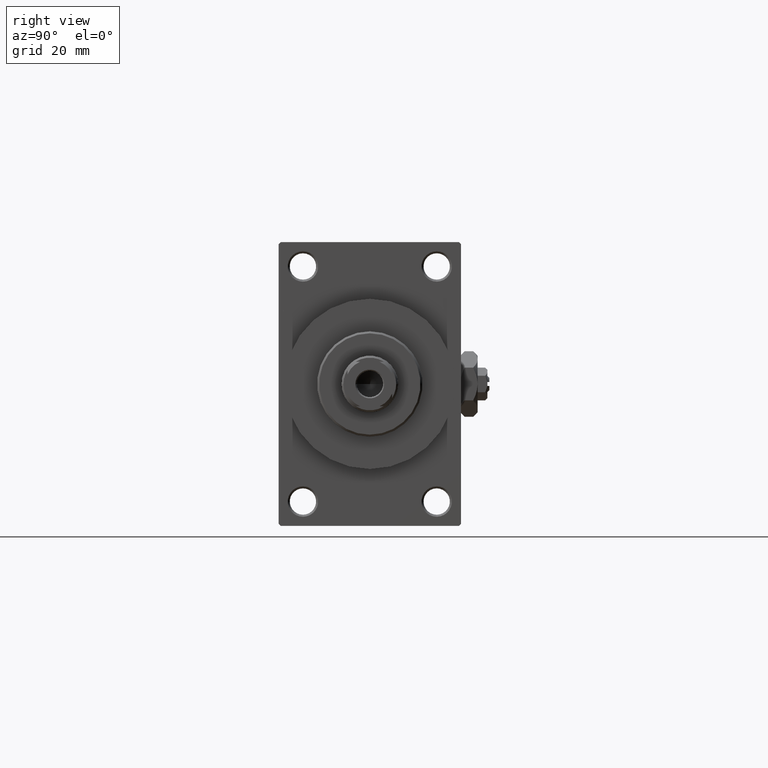
[diagram: clean part render]
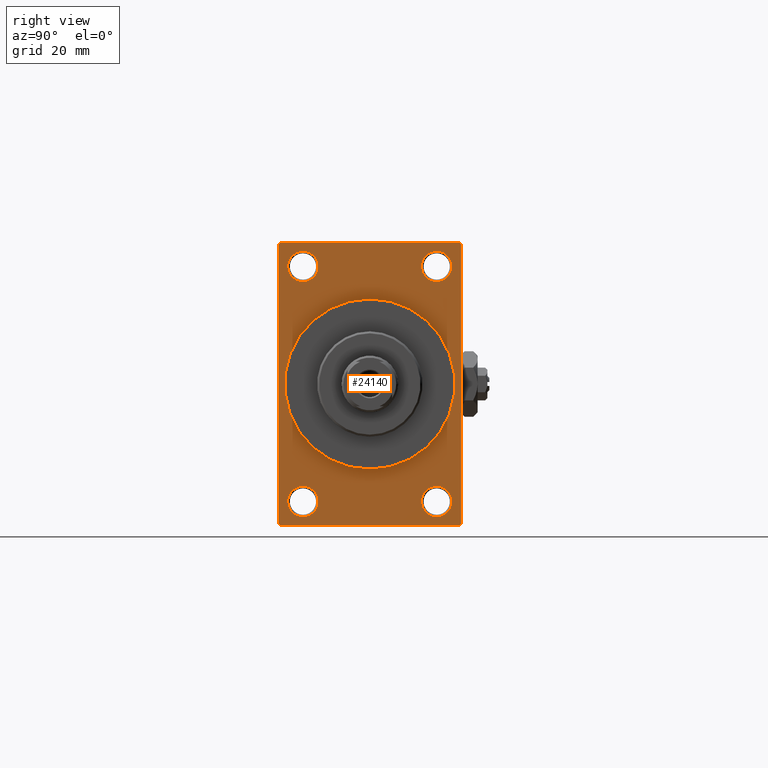
[diagram: same view with one face highlighted and labeled with its STEP entity id]
A machine part, right view. The second image highlights one B-rep face of the part: STEP entity #24140.
In plain terms, the highlighted planar face has unit normal (-1, 0, 0).
Its self-contained STEP definition (entity closure, byte-faithful):
#97 = CARTESIAN_POINT ( 'NONE',  ( 113.0000000000000142, -16.50000000000000000, 25.24999999999993960 ) ) ;
#307 = VERTEX_POINT ( 'NONE', #27035 ) ;
#590 = CIRCLE ( 'NONE', #39458, 3.750000000000069278 ) ;
#631 = DIRECTION ( 'NONE',  ( -1.000000000000000000, -0.000000000000000000, -0.000000000000000000 ) ) ;
#716 = ORIENTED_EDGE ( 'NONE', *, *, #46968, .T. ) ;
#776 = EDGE_LOOP ( 'NONE', ( #27406, #29274, #23062, #46913, #29911, #5922, #43927, #716 ) ) ;
#911 = VERTEX_POINT ( 'NONE', #39264 ) ;
#1194 = DIRECTION ( 'NONE',  ( 0.000000000000000000, 0.000000000000000000, 1.000000000000000000 ) ) ;
#1695 = CARTESIAN_POINT ( 'NONE',  ( 113.0000000000000142, -22.50000000000000355, 34.50000000000000000 ) ) ;
#1828 = CARTESIAN_POINT ( 'NONE',  ( 113.0000000000000142, 2.571758278209441661E-15, -21.00000000000000000 ) ) ;
#2065 = CARTESIAN_POINT ( 'NONE',  ( 113.0000000000000142, -16.50000000000000000, -28.99999999999999289 ) ) ;
#2131 = DIRECTION ( 'NONE',  ( 0.000000000000000000, 0.000000000000000000, 1.000000000000000000 ) ) ;
#2272 = LINE ( 'NONE', #32565, #41462 ) ;
#2622 = CARTESIAN_POINT ( 'NONE',  ( 113.0000000000000142, 16.50000000000000000, -28.99999999999999289 ) ) ;
#2880 = DIRECTION ( 'NONE',  ( 0.000000000000000000, -1.000000000000000000, 0.000000000000000000 ) ) ;
#2915 = ORIENTED_EDGE ( 'NONE', *, *, #29345, .T. ) ;
#3098 = VERTEX_POINT ( 'NONE', #14210 ) ;
#3306 = EDGE_CURVE ( 'NONE', #28517, #911, #39403, .T. ) ;
#3707 = DIRECTION ( 'NONE',  ( 1.000000000000000000, 0.000000000000000000, 0.000000000000000000 ) ) ;
#4218 = VERTEX_POINT ( 'NONE', #1828 ) ;
#5546 = CARTESIAN_POINT ( 'NONE',  ( 113.0000000000000142, -16.50000000000000000, -25.24999999999992184 ) ) ;
#5922 = ORIENTED_EDGE ( 'NONE', *, *, #41933, .T. ) ;
#6251 = DIRECTION ( 'NONE',  ( 0.000000000000000000, 0.000000000000000000, 1.000000000000000000 ) ) ;
#6436 = EDGE_CURVE ( 'NONE', #26003, #10861, #17294, .T. ) ;
#6534 = CARTESIAN_POINT ( 'NONE',  ( 113.0000000000000142, 22.49999999999999645, -34.50000000000000000 ) ) ;
#6734 = FACE_BOUND ( 'NONE', #11670, .T. ) ;
#6772 = EDGE_CURVE ( 'NONE', #23792, #21674, #43982, .T. ) ;
#7590 = VERTEX_POINT ( 'NONE', #47531 ) ;
#8163 = EDGE_CURVE ( 'NONE', #14517, #38658, #40641, .T. ) ;
#8383 = CARTESIAN_POINT ( 'NONE',  ( 113.0000000000000142, -16.50000000000000000, -32.75000000000007105 ) ) ;
#8601 = VECTOR ( 'NONE', #47955, 1000.000000000000000 ) ;
#9056 = CIRCLE ( 'NONE', #41624, 3.750000000000072831 ) ;
#9419 = VECTOR ( 'NONE', #2880, 1000.000000000000000 ) ;
#9845 = LINE ( 'NONE', #28965, #46258 ) ;
#9963 = CARTESIAN_POINT ( 'NONE',  ( 113.0000000000000142, -16.50000000000000000, -28.99999999999999289 ) ) ;
#10151 = AXIS2_PLACEMENT_3D ( 'NONE', #2622, #28434, #2131 ) ;
#10200 = FACE_BOUND ( 'NONE', #18673, .T. ) ;
#10861 = VERTEX_POINT ( 'NONE', #36254 ) ;
#11670 = EDGE_LOOP ( 'NONE', ( #47892, #21523 ) ) ;
#11907 = AXIS2_PLACEMENT_3D ( 'NONE', #37485, #3707, #26028 ) ;
#11913 = EDGE_CURVE ( 'NONE', #4218, #3098, #33315, .T. ) ;
#12610 = DIRECTION ( 'NONE',  ( -1.000000000000000000, -0.000000000000000000, -0.000000000000000000 ) ) ;
#12741 = CARTESIAN_POINT ( 'NONE',  ( 113.0000000000000142, 21.99999999999999645, -35.00000000000000000 ) ) ;
#12767 = AXIS2_PLACEMENT_3D ( 'NONE', #9963, #25120, #6251 ) ;
#14210 = CARTESIAN_POINT ( 'NONE',  ( 113.0000000000000142, 0.000000000000000000, 21.00000000000000000 ) ) ;
#14517 = VERTEX_POINT ( 'NONE', #12741 ) ;
#14806 = AXIS2_PLACEMENT_3D ( 'NONE', #38912, #24229, #23496 ) ;
#14868 = ORIENTED_EDGE ( 'NONE', *, *, #6436, .T. ) ;
#14927 = DIRECTION ( 'NONE',  ( 0.000000000000000000, 0.000000000000000000, -1.000000000000000000 ) ) ;
#16348 = ORIENTED_EDGE ( 'NONE', *, *, #44607, .F. ) ;
#16832 = CARTESIAN_POINT ( 'NONE',  ( 113.0000000000000142, -16.50000000000000000, 29.00000000000000711 ) ) ;
#17252 = CIRCLE ( 'NONE', #42636, 3.750000000000076383 ) ;
#17294 = CIRCLE ( 'NONE', #10151, 3.750000000000076383 ) ;
#17671 = FACE_BOUND ( 'NONE', #24594, .T. ) ;
#17826 = ORIENTED_EDGE ( 'NONE', *, *, #35030, .T. ) ;
#18363 = CARTESIAN_POINT ( 'NONE',  ( 113.0000000000000142, -22.50000000000000355, -34.49999999999997158 ) ) ;
#18414 = DIRECTION ( 'NONE',  ( 1.000000000000000000, 0.000000000000000000, 0.000000000000000000 ) ) ;
#18492 = ORIENTED_EDGE ( 'NONE', *, *, #28042, .T. ) ;
#18648 = EDGE_CURVE ( 'NONE', #14517, #37337, #9845, .T. ) ;
#18673 = EDGE_LOOP ( 'NONE', ( #18492, #24537 ) ) ;
#19077 = DIRECTION ( 'NONE',  ( 0.000000000000000000, -0.7071067811865474617, 0.7071067811865474617 ) ) ;
#19746 = CARTESIAN_POINT ( 'NONE',  ( 113.0000000000000142, -16.50000000000000000, 29.00000000000000711 ) ) ;
#20536 = AXIS2_PLACEMENT_3D ( 'NONE', #2065, #27876, #24164 ) ;
#20861 = CARTESIAN_POINT ( 'NONE',  ( 113.0000000000000142, 16.50000000000000000, 29.00000000000000355 ) ) ;
#21316 = CIRCLE ( 'NONE', #20536, 3.750000000000076383 ) ;
#21370 = CARTESIAN_POINT ( 'NONE',  ( 113.0000000000000142, 22.49999999999999645, 35.00000000000000000 ) ) ;
#21500 = CARTESIAN_POINT ( 'NONE',  ( 113.0000000000000142, 22.49999999999999645, -35.00000000000000000 ) ) ;
#21523 = ORIENTED_EDGE ( 'NONE', *, *, #21737, .T. ) ;
#21674 = VERTEX_POINT ( 'NONE', #43223 ) ;
#21737 = EDGE_CURVE ( 'NONE', #911, #28517, #9056, .T. ) ;
#21876 = DIRECTION ( 'NONE',  ( -0.000000000000000000, 0.000000000000000000, 1.000000000000000000 ) ) ;
#23062 = ORIENTED_EDGE ( 'NONE', *, *, #8163, .F. ) ;
#23496 = DIRECTION ( 'NONE',  ( 0.000000000000000000, 0.000000000000000000, 1.000000000000000000 ) ) ;
#23792 = VERTEX_POINT ( 'NONE', #45597 ) ;
#24140 = ADVANCED_FACE ( 'NONE', ( #10200, #47490, #17671, #6734, #40292, #33059 ), #48226, .F. ) ;
#24161 = DIRECTION ( 'NONE',  ( 0.000000000000000000, 0.000000000000000000, -1.000000000000000000 ) ) ;
#24164 = DIRECTION ( 'NONE',  ( 0.000000000000000000, 0.000000000000000000, 1.000000000000000000 ) ) ;
#24229 = DIRECTION ( 'NONE',  ( -1.000000000000000000, -0.000000000000000000, -0.000000000000000000 ) ) ;
#24537 = ORIENTED_EDGE ( 'NONE', *, *, #46927, .T. ) ;
#24594 = EDGE_LOOP ( 'NONE', ( #14868, #2915 ) ) ;
#24722 = VERTEX_POINT ( 'NONE', #8383 ) ;
#25120 = DIRECTION ( 'NONE',  ( -1.000000000000000000, -0.000000000000000000, -0.000000000000000000 ) ) ;
#25844 = DIRECTION ( 'NONE',  ( -1.000000000000000000, 0.000000000000000000, -0.000000000000000000 ) ) ;
#26003 = VERTEX_POINT ( 'NONE', #28751 ) ;
#26028 = DIRECTION ( 'NONE',  ( 0.000000000000000000, 0.000000000000000000, -1.000000000000000000 ) ) ;
#27035 = CARTESIAN_POINT ( 'NONE',  ( 113.0000000000000142, 22.49999999999999645, 34.50000000000000000 ) ) ;
#27126 = LINE ( 'NONE', #34375, #31873 ) ;
#27365 = AXIS2_PLACEMENT_3D ( 'NONE', #44250, #25844, #21876 ) ;
#27406 = ORIENTED_EDGE ( 'NONE', *, *, #28889, .T. ) ;
#27876 = DIRECTION ( 'NONE',  ( -1.000000000000000000, -0.000000000000000000, -0.000000000000000000 ) ) ;
#28042 = EDGE_CURVE ( 'NONE', #43672, #43352, #590, .T. ) ;
#28141 = ORIENTED_EDGE ( 'NONE', *, *, #45842, .T. ) ;
#28434 = DIRECTION ( 'NONE',  ( -1.000000000000000000, -0.000000000000000000, -0.000000000000000000 ) ) ;
#28517 = VERTEX_POINT ( 'NONE', #36811 ) ;
#28751 = CARTESIAN_POINT ( 'NONE',  ( 113.0000000000000142, 16.50000000000000000, -32.75000000000007105 ) ) ;
#28889 = EDGE_CURVE ( 'NONE', #7590, #46704, #47021, .T. ) ;
#28965 = CARTESIAN_POINT ( 'NONE',  ( 113.0000000000000142, 22.49999999999999645, -34.50000000000000000 ) ) ;
#29087 = CARTESIAN_POINT ( 'NONE',  ( 113.0000000000000142, 0.000000000000000000, 0.000000000000000000 ) ) ;
#29274 = ORIENTED_EDGE ( 'NONE', *, *, #48147, .T. ) ;
#29275 = DIRECTION ( 'NONE',  ( 0.000000000000000000, 0.000000000000000000, 1.000000000000000000 ) ) ;
#29345 = EDGE_CURVE ( 'NONE', #10861, #26003, #17252, .T. ) ;
#29474 = CARTESIAN_POINT ( 'NONE',  ( 113.0000000000000142, 16.50000000000000000, -28.99999999999999289 ) ) ;
#29911 = ORIENTED_EDGE ( 'NONE', *, *, #48646, .F. ) ;
#30486 = LINE ( 'NONE', #34234, #38875 ) ;
#31772 = CIRCLE ( 'NONE', #38142, 21.00000000000000000 ) ;
#31861 = CARTESIAN_POINT ( 'NONE',  ( 113.0000000000000142, -22.50000000000000355, 35.00000000000000000 ) ) ;
#31873 = VECTOR ( 'NONE', #42298, 999.9999999999998863 ) ;
#32525 = DIRECTION ( 'NONE',  ( -1.000000000000000000, -0.000000000000000000, -0.000000000000000000 ) ) ;
#32565 = CARTESIAN_POINT ( 'NONE',  ( 113.0000000000000142, 22.49999999999999645, 35.00000000000000000 ) ) ;
#32644 = AXIS2_PLACEMENT_3D ( 'NONE', #16832, #12610, #1194 ) ;
#33059 = FACE_OUTER_BOUND ( 'NONE', #776, .T. ) ;
#33206 = DIRECTION ( 'NONE',  ( 0.000000000000000000, 0.000000000000000000, 1.000000000000000000 ) ) ;
#33315 = CIRCLE ( 'NONE', #11907, 21.00000000000000000 ) ;
#33957 = DIRECTION ( 'NONE',  ( -1.000000000000000000, -0.000000000000000000, -0.000000000000000000 ) ) ;
#34234 = CARTESIAN_POINT ( 'NONE',  ( 113.0000000000000142, 21.99999999999999645, 35.00000000000000000 ) ) ;
#34375 = CARTESIAN_POINT ( 'NONE',  ( 113.0000000000000142, -21.99999999999998934, -35.00000000000000000 ) ) ;
#35030 = EDGE_CURVE ( 'NONE', #24722, #35124, #21316, .T. ) ;
#35124 = VERTEX_POINT ( 'NONE', #5546 ) ;
#35473 = DIRECTION ( 'NONE',  ( -0.000000000000000000, -0.7071067811865474617, -0.7071067811865474617 ) ) ;
#35699 = CARTESIAN_POINT ( 'NONE',  ( 113.0000000000000142, -16.50000000000000000, 32.75000000000007816 ) ) ;
#36254 = CARTESIAN_POINT ( 'NONE',  ( 113.0000000000000142, 16.50000000000000000, -25.24999999999992184 ) ) ;
#36811 = CARTESIAN_POINT ( 'NONE',  ( 113.0000000000000142, 16.50000000000000000, 25.24999999999993250 ) ) ;
#37337 = VERTEX_POINT ( 'NONE', #6534 ) ;
#37485 = CARTESIAN_POINT ( 'NONE',  ( 113.0000000000000142, 0.000000000000000000, 0.000000000000000000 ) ) ;
#38142 = AXIS2_PLACEMENT_3D ( 'NONE', #29087, #18414, #14927 ) ;
#38658 = VERTEX_POINT ( 'NONE', #43822 ) ;
#38875 = VECTOR ( 'NONE', #19077, 1000.000000000000114 ) ;
#38912 = CARTESIAN_POINT ( 'NONE',  ( 113.0000000000000142, 16.50000000000000000, 29.00000000000000355 ) ) ;
#39016 = VECTOR ( 'NONE', #35473, 1000.000000000000114 ) ;
#39264 = CARTESIAN_POINT ( 'NONE',  ( 113.0000000000000142, 16.50000000000000000, 32.75000000000007816 ) ) ;
#39403 = CIRCLE ( 'NONE', #14806, 3.750000000000072831 ) ;
#39458 = AXIS2_PLACEMENT_3D ( 'NONE', #19746, #631, #41869 ) ;
#39781 = EDGE_LOOP ( 'NONE', ( #16348, #44421 ) ) ;
#40038 = DIRECTION ( 'NONE',  ( 0.000000000000000000, 0.000000000000000000, -1.000000000000000000 ) ) ;
#40292 = FACE_BOUND ( 'NONE', #39781, .T. ) ;
#40641 = LINE ( 'NONE', #21500, #9419 ) ;
#41462 = VECTOR ( 'NONE', #40038, 1000.000000000000000 ) ;
#41624 = AXIS2_PLACEMENT_3D ( 'NONE', #20861, #32525, #29275 ) ;
#41869 = DIRECTION ( 'NONE',  ( 0.000000000000000000, 0.000000000000000000, 1.000000000000000000 ) ) ;
#41933 = EDGE_CURVE ( 'NONE', #307, #23792, #30486, .T. ) ;
#42165 = CIRCLE ( 'NONE', #32644, 3.750000000000069278 ) ;
#42298 = DIRECTION ( 'NONE',  ( 0.000000000000000000, 0.7071067811865376918, -0.7071067811865574537 ) ) ;
#42636 = AXIS2_PLACEMENT_3D ( 'NONE', #29474, #33957, #33206 ) ;
#42919 = LINE ( 'NONE', #1695, #39016 ) ;
#43223 = CARTESIAN_POINT ( 'NONE',  ( 113.0000000000000142, -21.99999999999998934, 35.00000000000000000 ) ) ;
#43352 = VERTEX_POINT ( 'NONE', #35699 ) ;
#43669 = EDGE_LOOP ( 'NONE', ( #17826, #28141 ) ) ;
#43672 = VERTEX_POINT ( 'NONE', #97 ) ;
#43822 = CARTESIAN_POINT ( 'NONE',  ( 113.0000000000000142, -21.99999999999997513, -35.00000000000000000 ) ) ;
#43927 = ORIENTED_EDGE ( 'NONE', *, *, #6772, .T. ) ;
#43982 = LINE ( 'NONE', #21370, #8601 ) ;
#44133 = DIRECTION ( 'NONE',  ( -0.000000000000000000, 0.7071067811865474617, 0.7071067811865474617 ) ) ;
#44250 = CARTESIAN_POINT ( 'NONE',  ( 113.0000000000000142, 0.000000000000000000, 0.000000000000000000 ) ) ;
#44421 = ORIENTED_EDGE ( 'NONE', *, *, #11913, .F. ) ;
#44607 = EDGE_CURVE ( 'NONE', #3098, #4218, #31772, .T. ) ;
#45597 = CARTESIAN_POINT ( 'NONE',  ( 113.0000000000000142, 21.99999999999999645, 35.00000000000000000 ) ) ;
#45842 = EDGE_CURVE ( 'NONE', #35124, #24722, #46091, .T. ) ;
#46091 = CIRCLE ( 'NONE', #12767, 3.750000000000076383 ) ;
#46258 = VECTOR ( 'NONE', #44133, 1000.000000000000114 ) ;
#46610 = VECTOR ( 'NONE', #24161, 1000.000000000000000 ) ;
#46704 = VERTEX_POINT ( 'NONE', #18363 ) ;
#46913 = ORIENTED_EDGE ( 'NONE', *, *, #18648, .T. ) ;
#46927 = EDGE_CURVE ( 'NONE', #43352, #43672, #42165, .T. ) ;
#46968 = EDGE_CURVE ( 'NONE', #21674, #7590, #42919, .T. ) ;
#47021 = LINE ( 'NONE', #31861, #46610 ) ;
#47490 = FACE_BOUND ( 'NONE', #43669, .T. ) ;
#47531 = CARTESIAN_POINT ( 'NONE',  ( 113.0000000000000142, -22.50000000000000355, 34.50000000000000000 ) ) ;
#47892 = ORIENTED_EDGE ( 'NONE', *, *, #3306, .T. ) ;
#47955 = DIRECTION ( 'NONE',  ( 0.000000000000000000, -1.000000000000000000, 0.000000000000000000 ) ) ;
#48147 = EDGE_CURVE ( 'NONE', #46704, #38658, #27126, .T. ) ;
#48226 = PLANE ( 'NONE',  #27365 ) ;
#48646 = EDGE_CURVE ( 'NONE', #307, #37337, #2272, .T. ) ;